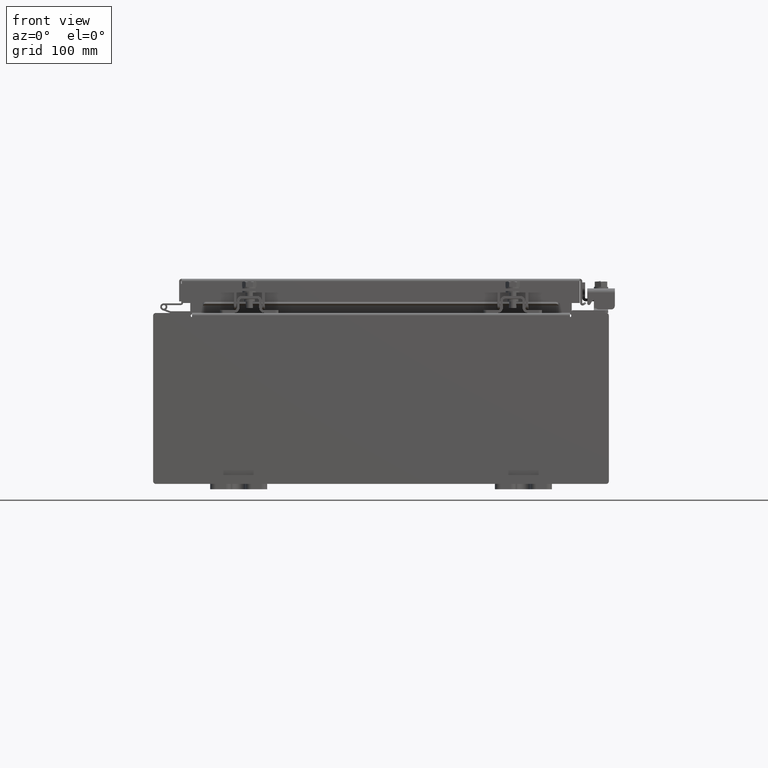
[diagram: clean part render]
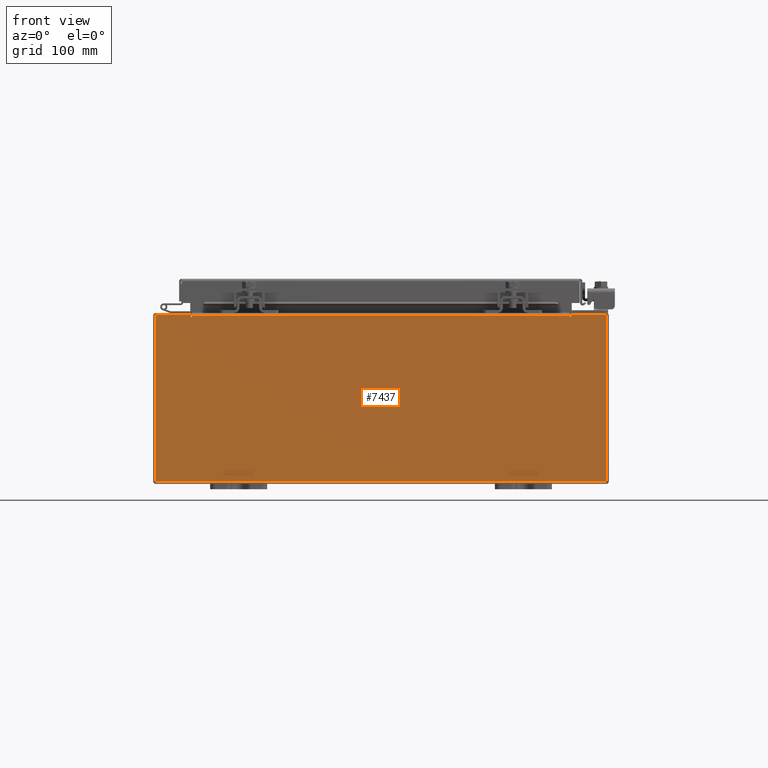
[diagram: same view with one face highlighted and labeled with its STEP entity id]
A machine part, front view. The second image highlights one B-rep face of the part: STEP entity #7437.
In plain terms, the highlighted planar face has unit normal (-0, 1, -0).
Its self-contained STEP definition (entity closure, byte-faithful):
#125 = LINE ( 'NONE', #684, #10277 ) ;
#684 = CARTESIAN_POINT ( 'NONE',  ( -7.925300000000000000, 0.0000000000000000000, 2.925300000000000500 ) ) ;
#846 = AXIS2_PLACEMENT_3D ( 'NONE', #5687, #19785, #7702 ) ;
#1048 = EDGE_CURVE ( 'NONE', #8502, #22037, #18344, .T. ) ;
#1840 = AXIS2_PLACEMENT_3D ( 'NONE', #2875, #18217, #9156 ) ;
#2074 = LINE ( 'NONE', #3310, #8104 ) ;
#2209 = VERTEX_POINT ( 'NONE', #5105 ) ;
#2262 = EDGE_CURVE ( 'NONE', #16499, #4558, #3134, .T. ) ;
#2746 = CARTESIAN_POINT ( 'NONE',  ( -7.925300000000000000, 0.0000000000000000000, -2.925299999999999600 ) ) ;
#2858 = CARTESIAN_POINT ( 'NONE',  ( 6.674549999999999100, 0.0000000000000000000, 2.874950000000000600 ) ) ;
#2875 = CARTESIAN_POINT ( 'NONE',  ( -6.655875000000000900, 0.0000000000000000000, 2.874950000000000600 ) ) ;
#3017 = ORIENTED_EDGE ( 'NONE', *, *, #24889, .T. ) ;
#3133 = CARTESIAN_POINT ( 'NONE',  ( -7.925300000000000000, 0.0000000000000000000, 2.925300000000000500 ) ) ;
#3134 = LINE ( 'NONE', #13339, #23955 ) ;
#3302 = VECTOR ( 'NONE', #8168, 39.37007874015748100 ) ;
#3310 = CARTESIAN_POINT ( 'NONE',  ( -6.637200000000000900, -0.0000000000000000000, 0.0000000000000000000 ) ) ;
#3317 = EDGE_CURVE ( 'NONE', #21019, #22378, #23620, .T. ) ;
#3446 = VECTOR ( 'NONE', #7762, 39.37007874015748100 ) ;
#4166 = ORIENTED_EDGE ( 'NONE', *, *, #20378, .T. ) ;
#4558 = VERTEX_POINT ( 'NONE', #25990 ) ;
#4772 = DIRECTION ( 'NONE',  ( 1.000000000000000000, 0.0000000000000000000, 0.0000000000000000000 ) ) ;
#5105 = CARTESIAN_POINT ( 'NONE',  ( -6.637200000000000900, -1.707404996040164500E-016, 2.912300000000000600 ) ) ;
#5259 = ORIENTED_EDGE ( 'NONE', *, *, #17129, .T. ) ;
#5545 = CARTESIAN_POINT ( 'NONE',  ( 6.637199999999997300, 0.0000000000000000000, 2.874950000000000600 ) ) ;
#5687 = CARTESIAN_POINT ( 'NONE',  ( 0.0000000000000000000, 0.0000000000000000000, 0.0000000000000000000 ) ) ;
#5696 = CARTESIAN_POINT ( 'NONE',  ( -7.925300000000000000, 0.0000000000000000000, 2.925300000000000500 ) ) ;
#6093 = ORIENTED_EDGE ( 'NONE', *, *, #16260, .F. ) ;
#6386 = DIRECTION ( 'NONE',  ( -0.0000000000000000000, 1.000000000000000000, -0.0000000000000000000 ) ) ;
#6609 = ORIENTED_EDGE ( 'NONE', *, *, #10622, .F. ) ;
#6699 = VECTOR ( 'NONE', #7717, 39.37007874015748100 ) ;
#7212 = ORIENTED_EDGE ( 'NONE', *, *, #13139, .T. ) ;
#7352 = ORIENTED_EDGE ( 'NONE', *, *, #17552, .F. ) ;
#7437 = ADVANCED_FACE ( 'NONE', ( #14512 ), #17768, .F. ) ;
#7620 = ORIENTED_EDGE ( 'NONE', *, *, #1048, .F. ) ;
#7702 = DIRECTION ( 'NONE',  ( 0.0000000000000000000, -0.0000000000000000000, -1.000000000000000000 ) ) ;
#7717 = DIRECTION ( 'NONE',  ( -0.0000000000000000000, -0.0000000000000000000, 1.000000000000000000 ) ) ;
#7762 = DIRECTION ( 'NONE',  ( 1.000000000000000000, 0.0000000000000000000, 0.0000000000000000000 ) ) ;
#8104 = VECTOR ( 'NONE', #17441, 39.37007874015748100 ) ;
#8168 = DIRECTION ( 'NONE',  ( -1.000000000000000000, -0.0000000000000000000, -0.0000000000000000000 ) ) ;
#8502 = VERTEX_POINT ( 'NONE', #19647 ) ;
#8586 = VECTOR ( 'NONE', #23194, 39.37007874015748100 ) ;
#8652 = CIRCLE ( 'NONE', #12381, 0.01867500000000003900 ) ;
#8675 = LINE ( 'NONE', #24198, #3302 ) ;
#8926 = CARTESIAN_POINT ( 'NONE',  ( -6.674550000000000900, -0.0000000000000000000, 0.0000000000000000000 ) ) ;
#9156 = DIRECTION ( 'NONE',  ( 0.0000000000000000000, 0.0000000000000000000, -1.000000000000000000 ) ) ;
#9252 = CARTESIAN_POINT ( 'NONE',  ( -6.637200000000000900, -1.707404996040164500E-016, 2.912300000000000600 ) ) ;
#9480 = VERTEX_POINT ( 'NONE', #18902 ) ;
#9575 = VERTEX_POINT ( 'NONE', #3133 ) ;
#9599 = CARTESIAN_POINT ( 'NONE',  ( 6.674549999999999100, 0.0000000000000000000, 2.925300000000000500 ) ) ;
#10161 = VERTEX_POINT ( 'NONE', #2746 ) ;
#10167 = CARTESIAN_POINT ( 'NONE',  ( 7.925300000000000000, 0.0000000000000000000, 2.925300000000000500 ) ) ;
#10254 = LINE ( 'NONE', #8926, #20306 ) ;
#10277 = VECTOR ( 'NONE', #4772, 39.37007874015748100 ) ;
#10622 = EDGE_CURVE ( 'NONE', #25097, #16499, #8652, .T. ) ;
#10918 = VERTEX_POINT ( 'NONE', #13727 ) ;
#10970 = DIRECTION ( 'NONE',  ( 0.0000000000000000000, 0.0000000000000000000, 1.000000000000000000 ) ) ;
#11835 = CARTESIAN_POINT ( 'NONE',  ( -7.925300000000000000, 0.0000000000000000000, 2.925300000000000500 ) ) ;
#12110 = EDGE_CURVE ( 'NONE', #2209, #8502, #2074, .T. ) ;
#12381 = AXIS2_PLACEMENT_3D ( 'NONE', #18476, #6386, #20499 ) ;
#12419 = DIRECTION ( 'NONE',  ( 0.0000000000000000000, 0.0000000000000000000, -1.000000000000000000 ) ) ;
#13139 = EDGE_CURVE ( 'NONE', #9575, #9480, #125, .T. ) ;
#13339 = CARTESIAN_POINT ( 'NONE',  ( 6.637199999999999100, 0.0000000000000000000, 0.0000000000000000000 ) ) ;
#13727 = CARTESIAN_POINT ( 'NONE',  ( 7.925300000000000000, 0.0000000000000000000, -2.925299999999999600 ) ) ;
#13961 = LINE ( 'NONE', #25147, #8586 ) ;
#14512 = FACE_OUTER_BOUND ( 'NONE', #19153, .T. ) ;
#14935 = VECTOR ( 'NONE', #25366, 39.37007874015748100 ) ;
#15574 = EDGE_CURVE ( 'NONE', #10918, #10161, #8675, .T. ) ;
#16260 = EDGE_CURVE ( 'NONE', #22037, #9480, #10254, .T. ) ;
#16499 = VERTEX_POINT ( 'NONE', #5545 ) ;
#16789 = ORIENTED_EDGE ( 'NONE', *, *, #3317, .T. ) ;
#17129 = EDGE_CURVE ( 'NONE', #10161, #9575, #18065, .T. ) ;
#17441 = DIRECTION ( 'NONE',  ( 0.0000000000000000000, 0.0000000000000000000, -1.000000000000000000 ) ) ;
#17552 = EDGE_CURVE ( 'NONE', #21019, #25097, #13961, .T. ) ;
#17768 = PLANE ( 'NONE',  #846 ) ;
#18065 = LINE ( 'NONE', #5696, #6699 ) ;
#18217 = DIRECTION ( 'NONE',  ( -0.0000000000000000000, 1.000000000000000000, -0.0000000000000000000 ) ) ;
#18344 = CIRCLE ( 'NONE', #1840, 0.01867500000000003900 ) ;
#18476 = CARTESIAN_POINT ( 'NONE',  ( 6.655874999999998200, 0.0000000000000000000, 2.874950000000000600 ) ) ;
#18527 = LINE ( 'NONE', #24477, #23885 ) ;
#18902 = CARTESIAN_POINT ( 'NONE',  ( -6.674550000000000900, 0.0000000000000000000, 2.925300000000000500 ) ) ;
#18928 = ORIENTED_EDGE ( 'NONE', *, *, #12110, .F. ) ;
#19153 = EDGE_LOOP ( 'NONE', ( #6093, #7620, #18928, #4166, #22368, #6609, #7352, #16789, #3017, #25849, #5259, #7212 ) ) ;
#19647 = CARTESIAN_POINT ( 'NONE',  ( -6.637200000000000900, -0.0000000000000000000, 2.874950000000000600 ) ) ;
#19785 = DIRECTION ( 'NONE',  ( 0.0000000000000000000, -1.000000000000000000, 0.0000000000000000000 ) ) ;
#20285 = LINE ( 'NONE', #9252, #14935 ) ;
#20306 = VECTOR ( 'NONE', #10970, 39.37007874015748100 ) ;
#20378 = EDGE_CURVE ( 'NONE', #2209, #4558, #20285, .T. ) ;
#20499 = DIRECTION ( 'NONE',  ( 0.0000000000000000000, 0.0000000000000000000, -1.000000000000000000 ) ) ;
#20541 = CARTESIAN_POINT ( 'NONE',  ( -6.674550000000000900, 0.0000000000000000000, 2.874950000000000600 ) ) ;
#21019 = VERTEX_POINT ( 'NONE', #9599 ) ;
#21429 = DIRECTION ( 'NONE',  ( 0.0000000000000000000, 0.0000000000000000000, 1.000000000000000000 ) ) ;
#22037 = VERTEX_POINT ( 'NONE', #20541 ) ;
#22368 = ORIENTED_EDGE ( 'NONE', *, *, #2262, .F. ) ;
#22378 = VERTEX_POINT ( 'NONE', #10167 ) ;
#23194 = DIRECTION ( 'NONE',  ( -2.170286390200002500E-014, 0.0000000000000000000, -1.000000000000000000 ) ) ;
#23620 = LINE ( 'NONE', #11835, #3446 ) ;
#23885 = VECTOR ( 'NONE', #12419, 39.37007874015748100 ) ;
#23955 = VECTOR ( 'NONE', #21429, 39.37007874015748100 ) ;
#24198 = CARTESIAN_POINT ( 'NONE',  ( -7.925300000000000000, 0.0000000000000000000, -2.925299999999999600 ) ) ;
#24477 = CARTESIAN_POINT ( 'NONE',  ( 7.925300000000000000, 0.0000000000000000000, 2.925300000000000500 ) ) ;
#24889 = EDGE_CURVE ( 'NONE', #22378, #10918, #18527, .T. ) ;
#25097 = VERTEX_POINT ( 'NONE', #2858 ) ;
#25147 = CARTESIAN_POINT ( 'NONE',  ( 6.674549999999936900, -0.0000000000000000000, -1.448568502570928700E-013 ) ) ;
#25366 = DIRECTION ( 'NONE',  ( 1.000000000000000000, 0.0000000000000000000, 0.0000000000000000000 ) ) ;
#25849 = ORIENTED_EDGE ( 'NONE', *, *, #15574, .T. ) ;
#25990 = CARTESIAN_POINT ( 'NONE',  ( 6.637199999999999100, 0.0000000000000000000, 2.912300000000000600 ) ) ;